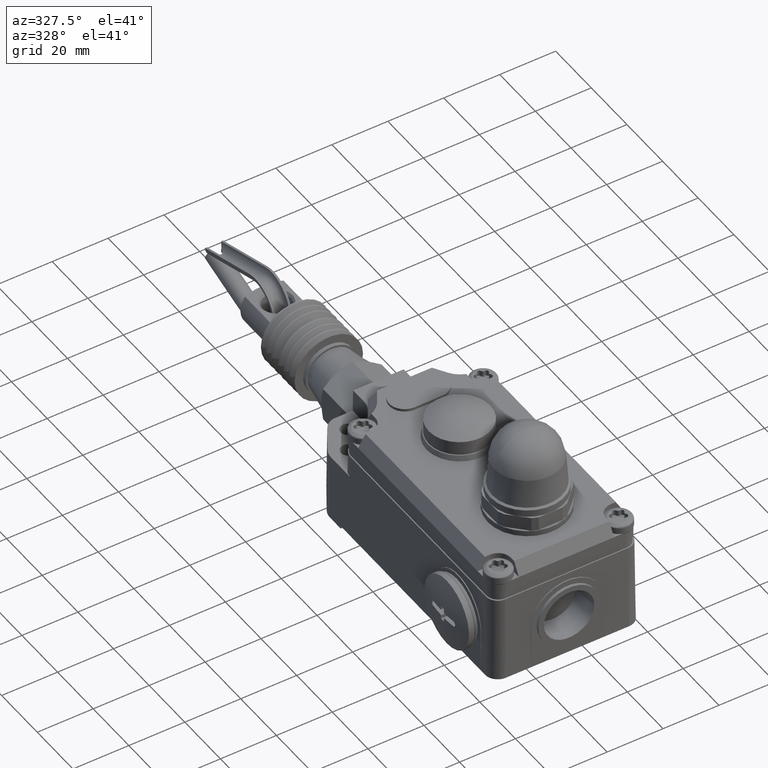
[diagram: clean part render]
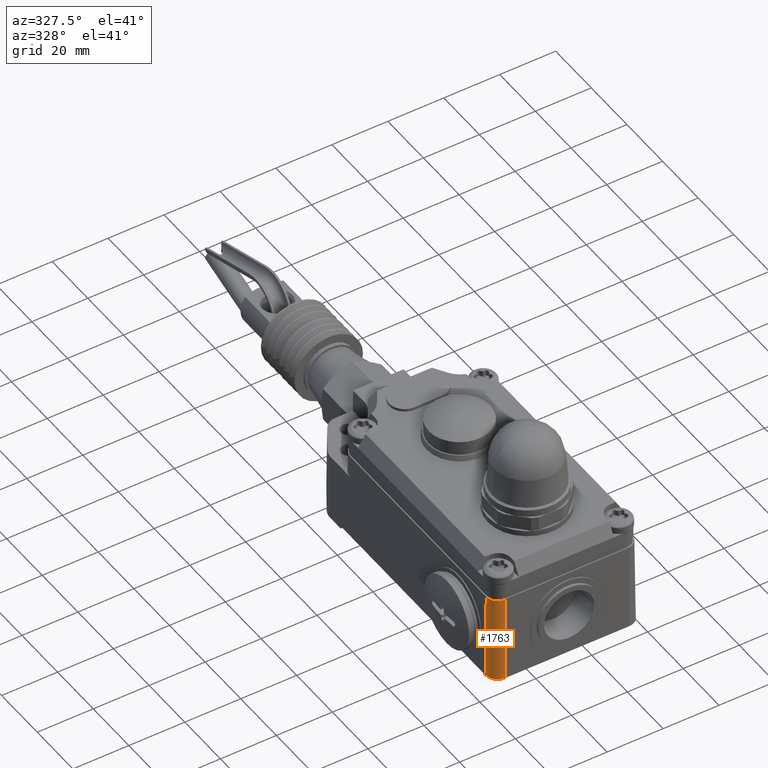
[diagram: same view with one face highlighted and labeled with its STEP entity id]
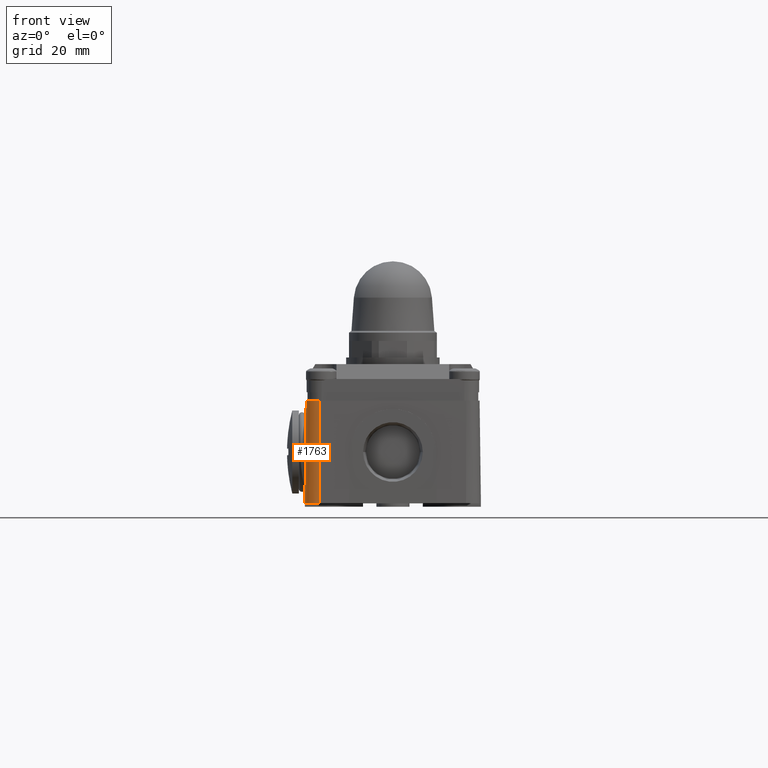
[diagram: same view with one face highlighted and labeled with its STEP entity id]
A machine part, auxiliary view. The second image highlights one B-rep face of the part: STEP entity #1763.
A second angle (front view) of the same face is appended — the face is thin or edge-on in the first view.
In plain terms, the highlighted conical surface has half-angle 0.75 deg.
Its self-contained STEP definition (entity closure, byte-faithful):
#1763=ADVANCED_FACE('',(#3569),#3570,.T.);
#3569=FACE_OUTER_BOUND('',#5379,.T.);
#3570=CONICAL_SURFACE('',#5380,4.50000000010002,0.0130899693899599);
#5379=EDGE_LOOP('',(#10489,#10490,#10491,#10492));
#5380=AXIS2_PLACEMENT_3D('',#10493,#10494,#10495);
#10489=ORIENTED_EDGE('',*,*,#12326,.T.);
#10490=ORIENTED_EDGE('',*,*,#12665,.F.);
#10491=ORIENTED_EDGE('',*,*,#12564,.T.);
#10492=ORIENTED_EDGE('',*,*,#12663,.T.);
#10493=CARTESIAN_POINT('',(9.8693227991,5.49889298730001,1.0));
#10494=DIRECTION('',(0.0,-0.0,-1.0));
#10495=DIRECTION('',(-1.0,-2.96722646446822E-011,-0.0));
#12326=EDGE_CURVE('',#15123,#15121,#15124,.T.);
#12564=EDGE_CURVE('',#15466,#15464,#15467,.T.);
#12663=EDGE_CURVE('',#15464,#15123,#15600,.T.);
#12665=EDGE_CURVE('',#15466,#15121,#15602,.T.);
#15121=VERTEX_POINT('',#19275);
#15123=VERTEX_POINT('',#19278);
#15124=CIRCLE('',#19279,4.09418777047013);
#15464=VERTEX_POINT('',#19840);
#15466=VERTEX_POINT('',#19843);
#15467=CIRCLE('',#19844,4.50000000010002);
#15600=LINE('',#20028,#20029);
#15602=LINE('',#20031,#20032);
#19275=CARTESIAN_POINT('',(5.7751350286299,5.498892987166,32.0));
#19278=CARTESIAN_POINT('',(9.869322799009,1.40470521683001,32.0));
#19279=AXIS2_PLACEMENT_3D('',#22344,#22345,#22346);
#19840=CARTESIAN_POINT('',(9.869322799,0.998892987200009,1.0));
#19843=CARTESIAN_POINT('',(5.369322799,5.498892987166,1.0));
#19844=AXIS2_PLACEMENT_3D('',#22613,#22614,#22615);
#20028=CARTESIAN_POINT('',(9.869322799,0.998892987200009,1.0));
#20029=VECTOR('',#22712,1.0);
#20031=CARTESIAN_POINT('',(5.369322799,5.498892987166,1.0));
#20032=VECTOR('',#22713,1.0);
#22344=CARTESIAN_POINT('',(9.8693227991,5.49889298730001,32.0));
#22345=DIRECTION('',(-0.0,0.0,-1.0));
#22346=DIRECTION('',(-1.0,-2.96722646446822E-011,0.0));
#22613=CARTESIAN_POINT('',(9.8693227991,5.49889298730001,1.0));
#22614=DIRECTION('',(0.0,0.0,1.0));
#22615=DIRECTION('',(-1.0,-2.96722646446822E-011,0.0));
#22712=DIRECTION('',(2.90953781808412E-013,0.0130895955713444,0.999914327574007));
#22713=DIRECTION('',(0.0130895955713449,0.0,0.999914327574007));